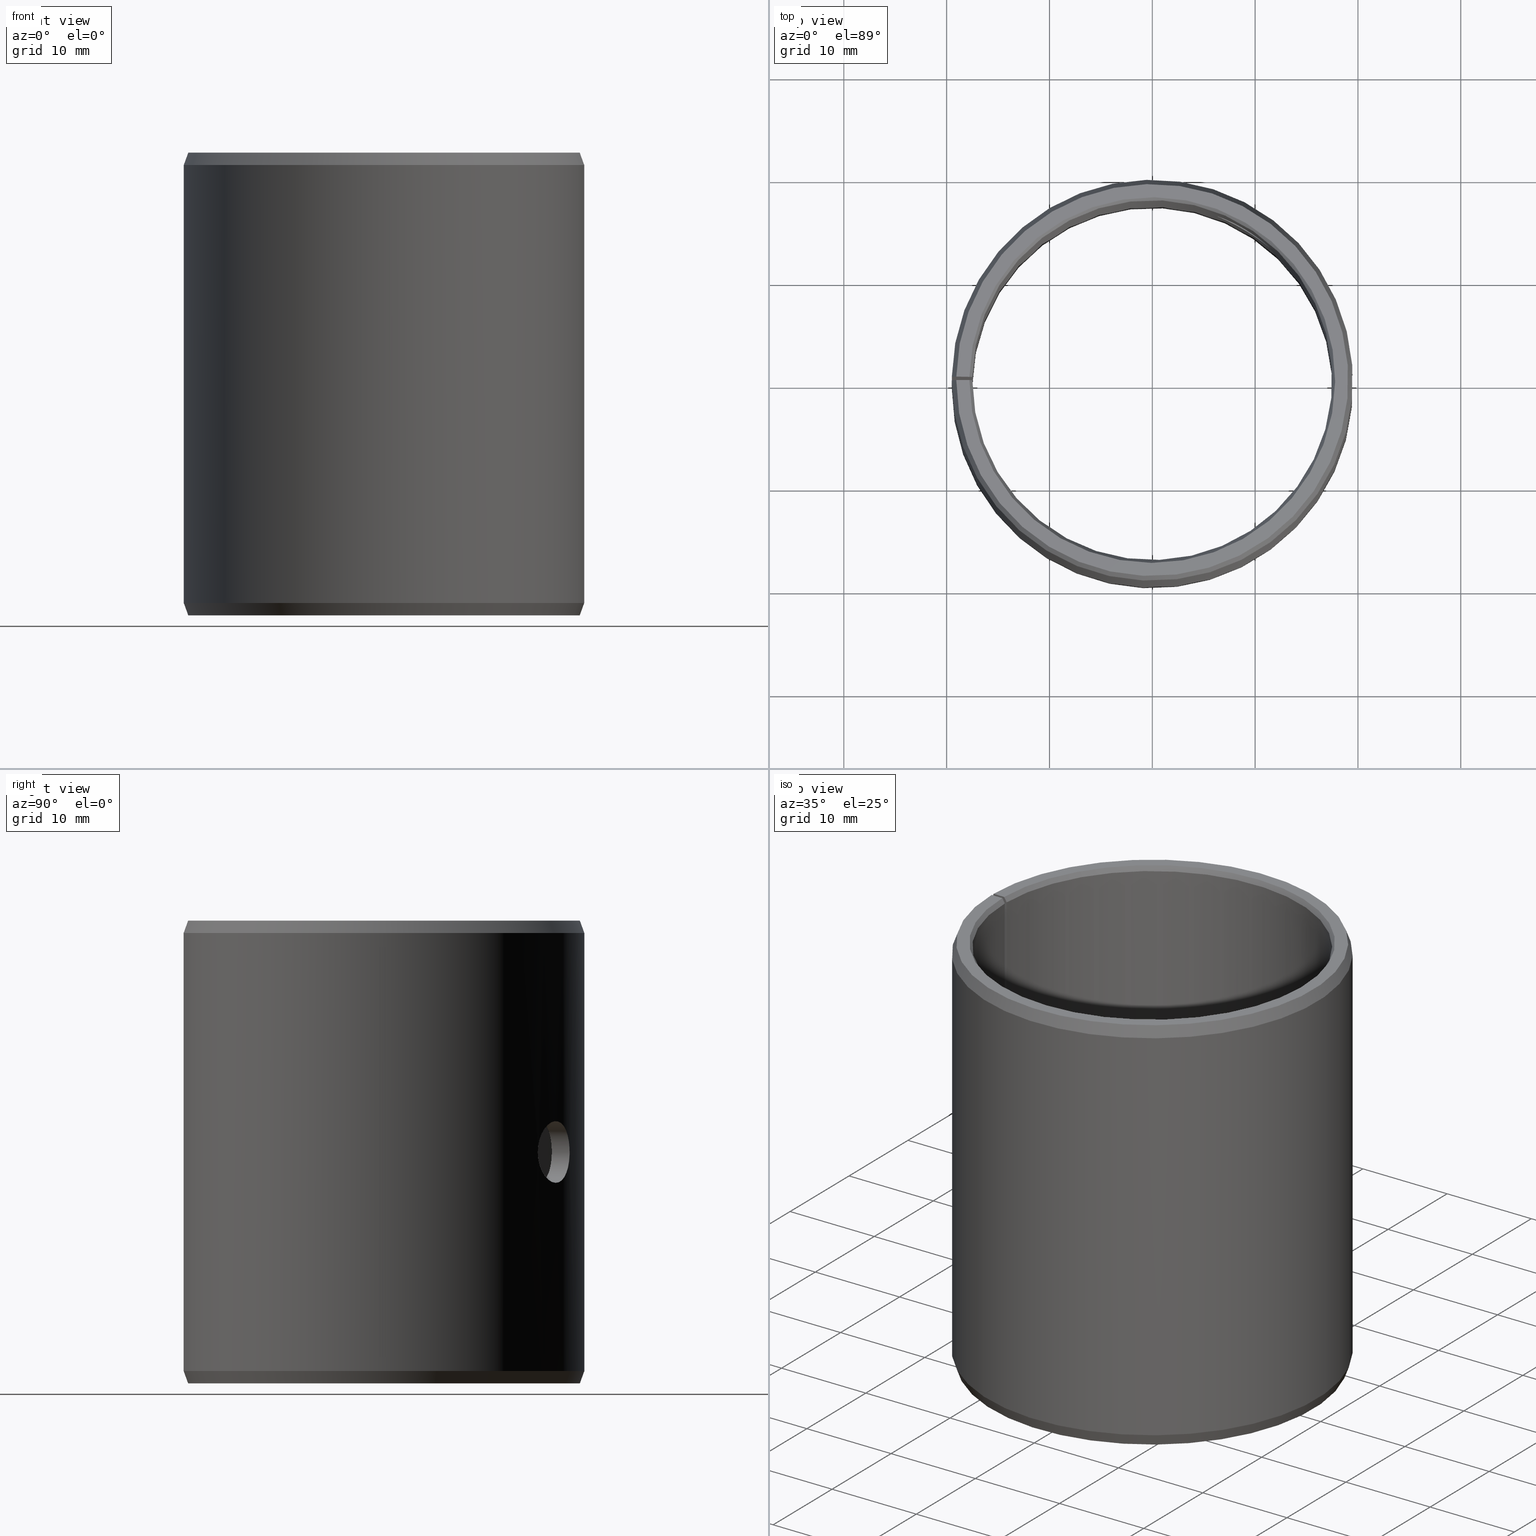
[diagram: canonical four-view strip — front | top / right | iso, engineering-drawing reading convention]
A machine part, canonical four-view strip (front | top / right | iso — engineering-drawing reading convention). The complete STEP part file that produces these views, byte-faithful:
ISO-10303-21;
HEADER;
FILE_DESCRIPTION(('STEP AP203'),'1');
FILE_NAME('440-POM3545LMB.stp','2016-09-21T05:13:50',(' '),(' '),'Spatial InterOp 3D',' ',' ');
FILE_SCHEMA(('CONFIG_CONTROL_DESIGN'));
ENDSEC;
DATA;
#1=DESIGN_CONTEXT('',#51,'design');
#2=APPLICATION_PROTOCOL_DEFINITION('INTERNATIONAL STANDARD','config_control_design',1994,#51);
#3=PRODUCT_CATEGORY_RELATIONSHIP('NONE','NONE',#52,#53);
#4=DATE_AND_TIME(#54,#55);
#5=DATE_TIME_ROLE('creation_date');
#6=DATE_TIME_ROLE('classification_date');
#7=PERSON_AND_ORGANIZATION_ROLE('creator');
#8=PERSON_AND_ORGANIZATION_ROLE('design_supplier');
#9=PERSON_AND_ORGANIZATION_ROLE('classification_officer');
#10=PERSON_AND_ORGANIZATION_ROLE('design_owner');
#11=APPROVAL_PERSON_ORGANIZATION(#56,#57,#58);
#12=APPROVAL_DATE_TIME(#4,#57);
#13=CC_DESIGN_APPROVAL(#57,(#59,#60,#61));
#14=CC_DESIGN_DATE_AND_TIME_ASSIGNMENT(#4,#5,(#61));
#15=CC_DESIGN_DATE_AND_TIME_ASSIGNMENT(#4,#6,(#59));
#16=CC_DESIGN_PERSON_AND_ORGANIZATION_ASSIGNMENT(#56,#10,(#62));
#17=CC_DESIGN_PERSON_AND_ORGANIZATION_ASSIGNMENT(#56,#7,(#61));
#18=CC_DESIGN_PERSON_AND_ORGANIZATION_ASSIGNMENT(#56,#7,(#60));
#19=CC_DESIGN_PERSON_AND_ORGANIZATION_ASSIGNMENT(#56,#8,(#60));
#20=CC_DESIGN_SECURITY_CLASSIFICATION(#59,(#60));
#21=CC_DESIGN_PERSON_AND_ORGANIZATION_ASSIGNMENT(#56,#9,(#59));
#22=SHAPE_DEFINITION_REPRESENTATION(#63,#64);
#23=DESIGN_CONTEXT('',#65,'design');
#24=APPLICATION_PROTOCOL_DEFINITION('INTERNATIONAL STANDARD','config_control_design',1994,#65);
#25=PRODUCT_CATEGORY_RELATIONSHIP('NONE','NONE',#66,#67);
#26=DATE_AND_TIME(#68,#69);
#27=DATE_TIME_ROLE('creation_date');
#28=DATE_TIME_ROLE('classification_date');
#29=PERSON_AND_ORGANIZATION_ROLE('creator');
#30=PERSON_AND_ORGANIZATION_ROLE('design_supplier');
#31=PERSON_AND_ORGANIZATION_ROLE('classification_officer');
#32=PERSON_AND_ORGANIZATION_ROLE('design_owner');
#33=APPROVAL_PERSON_ORGANIZATION(#70,#71,#72);
#34=APPROVAL_DATE_TIME(#26,#71);
#35=CC_DESIGN_APPROVAL(#71,(#73,#74,#75));
#36=CC_DESIGN_DATE_AND_TIME_ASSIGNMENT(#26,#27,(#75));
#37=CC_DESIGN_DATE_AND_TIME_ASSIGNMENT(#26,#28,(#73));
#38=CC_DESIGN_PERSON_AND_ORGANIZATION_ASSIGNMENT(#70,#32,(#76));
#39=CC_DESIGN_PERSON_AND_ORGANIZATION_ASSIGNMENT(#70,#29,(#75));
#40=CC_DESIGN_PERSON_AND_ORGANIZATION_ASSIGNMENT(#70,#29,(#74));
#41=CC_DESIGN_PERSON_AND_ORGANIZATION_ASSIGNMENT(#70,#30,(#74));
#42=CC_DESIGN_SECURITY_CLASSIFICATION(#73,(#74));
#43=CC_DESIGN_PERSON_AND_ORGANIZATION_ASSIGNMENT(#70,#31,(#73));
#44=CONTEXT_DEPENDENT_SHAPE_REPRESENTATION(#77,#78);
#45=SHAPE_DEFINITION_REPRESENTATION(#79,#80);
#46=SHAPE_REPRESENTATION_RELATIONSHIP('NONE','NONE',#80,#81);
#47= (GEOMETRIC_REPRESENTATION_CONTEXT(3)GLOBAL_UNCERTAINTY_ASSIGNED_CONTEXT((#84))GLOBAL_UNIT_ASSIGNED_CONTEXT((#86,#87,#88))REPRESENTATION_CONTEXT('NONE','WORKSPACE'));
#51=APPLICATION_CONTEXT('CONFIGURATION CONTROLLED 3D DESIGNS OF MECHANICAL PARTS AND ASSEMBLIES');
#52=PRODUCT_CATEGORY('part','NONE');
#53=PRODUCT_RELATED_PRODUCT_CATEGORY('detail',' ',(#62));
#54=CALENDAR_DATE(2016,21,8);
#55=LOCAL_TIME(7,13,50.0,#90);
#56=PERSON_AND_ORGANIZATION(#91,#92);
#57=APPROVAL(#93,'SOLID MODEL');
#58=APPROVAL_ROLE('APPROVED');
#59=SECURITY_CLASSIFICATION('','',#94);
#60=PRODUCT_DEFINITION_FORMATION_WITH_SPECIFIED_SOURCE(' ','NONE',#62,.NOT_KNOWN.);
#61=PRODUCT_DEFINITION('NONE','NONE',#60,#1);
#62=PRODUCT('','','PART--DESC',(#95));
#63=PRODUCT_DEFINITION_SHAPE('NONE','NONE',#61);
#64=SHAPE_REPRESENTATION('',(#96,#97),#98);
#65=APPLICATION_CONTEXT('CONFIGURATION CONTROLLED 3D DESIGNS OF MECHANICAL PARTS AND ASSEMBLIES');
#66=PRODUCT_CATEGORY('part','NONE');
#67=PRODUCT_RELATED_PRODUCT_CATEGORY('detail',' ',(#76));
#68=CALENDAR_DATE(2016,21,8);
#69=LOCAL_TIME(7,13,50.0,#99);
#70=PERSON_AND_ORGANIZATION(#100,#101);
#71=APPROVAL(#102,'SOLID MODEL');
#72=APPROVAL_ROLE('APPROVED');
#73=SECURITY_CLASSIFICATION('','',#103);
#74=PRODUCT_DEFINITION_FORMATION_WITH_SPECIFIED_SOURCE(' ','NONE',#76,.NOT_KNOWN.);
#75=PRODUCT_DEFINITION('440-POM3545LMB','440-POM3545LMB',#74,#23);
#76=PRODUCT('440-POM3545LMB','440-POM3545LMB','PART-440-POM3545LMB-DESC',(#104));
#77=(REPRESENTATION_RELATIONSHIP('','',#80,#64)REPRESENTATION_RELATIONSHIP_WITH_TRANSFORMATION(#107)SHAPE_REPRESENTATION_RELATIONSHIP());
#78=PRODUCT_DEFINITION_SHAPE('NAUO-PROD-DEF','NAUO-PROD-DEF',#109);
#79=PRODUCT_DEFINITION_SHAPE('NONE','NONE',#75);
#80=SHAPE_REPRESENTATION('440-POM3545LMB',(#96),#98);
#81=ADVANCED_BREP_SHAPE_REPRESENTATION('',(#110),#47);
#84=UNCERTAINTY_MEASURE_WITH_UNIT(LENGTH_MEASURE(1.0E-006),#86,'','');
#86= (CONVERSION_BASED_UNIT('METRE',#113)LENGTH_UNIT()NAMED_UNIT(#116));
#87= (NAMED_UNIT(#118)PLANE_ANGLE_UNIT()SI_UNIT($,.RADIAN.));
#88= (NAMED_UNIT(#118)SOLID_ANGLE_UNIT()SI_UNIT($,.STERADIAN.));
#90=COORDINATED_UNIVERSAL_TIME_OFFSET(1,0,.AHEAD.);
#91=PERSON('','UNSPECIFIED',$,$,$,$);
#92=ORGANIZATION('UNSPECIFIED','UNSPECIFIED','UNSPECIFIED');
#93=APPROVAL_STATUS('approved');
#94=SECURITY_CLASSIFICATION_LEVEL('unclassified');
#95=MECHANICAL_CONTEXT('',#51,'mechanical');
#96=AXIS2_PLACEMENT_3D('',#124,#125,#126);
#97=AXIS2_PLACEMENT_3D('',#127,#128,#129);
#98= (GEOMETRIC_REPRESENTATION_CONTEXT(3)GLOBAL_UNCERTAINTY_ASSIGNED_CONTEXT((#132))GLOBAL_UNIT_ASSIGNED_CONTEXT((#134,#135,#136))REPRESENTATION_CONTEXT('NONE','WORKSPACE'));
#99=COORDINATED_UNIVERSAL_TIME_OFFSET(1,0,.AHEAD.);
#100=PERSON('','UNSPECIFIED',$,$,$,$);
#101=ORGANIZATION('UNSPECIFIED','UNSPECIFIED','UNSPECIFIED');
#102=APPROVAL_STATUS('approved');
#103=SECURITY_CLASSIFICATION_LEVEL('unclassified');
#104=MECHANICAL_CONTEXT('',#65,'mechanical');
#107=ITEM_DEFINED_TRANSFORMATION('','',#96,#97);
#109=NEXT_ASSEMBLY_USAGE_OCCURRENCE('440-POM3545LMB','440-POM3545LMB','440-POM3545LMB',#61,#75,$);
#110=MANIFOLD_SOLID_BREP('',#138);
#113=LENGTH_MEASURE_WITH_UNIT(LENGTH_MEASURE(1.0),#139);
#116=DIMENSIONAL_EXPONENTS(1.0,0.0,0.0,0.0,0.0,0.0,0.0);
#118=DIMENSIONAL_EXPONENTS(0.0,0.0,0.0,0.0,0.0,0.0,0.0);
#124=CARTESIAN_POINT('',(0.0,0.0,0.0));
#125=DIRECTION('',(0.0,0.0,1.0));
#126=DIRECTION('',(1.0,0.0,0.0));
#127=CARTESIAN_POINT('',(0.0,0.0,0.0));
#128=DIRECTION('',(5.48707263966374E-016,-5.48707263966376E-016,1.0));
#129=DIRECTION('',(1.39349996950756E-015,1.0,5.48707263966375E-016));
#132=UNCERTAINTY_MEASURE_WITH_UNIT(LENGTH_MEASURE(1.0E-006),#134,'','');
#134= (CONVERSION_BASED_UNIT('METRE',#142)LENGTH_UNIT()NAMED_UNIT(#145));
#135= (NAMED_UNIT(#147)PLANE_ANGLE_UNIT()SI_UNIT($,.RADIAN.));
#136= (NAMED_UNIT(#147)SOLID_ANGLE_UNIT()SI_UNIT($,.STERADIAN.));
#138=CLOSED_SHELL('',(#153,#154,#155,#156,#157,#158,#159,#160,#161,#162,#163));
#139= (NAMED_UNIT(#116)LENGTH_UNIT()SI_UNIT($,.METRE.));
#142=LENGTH_MEASURE_WITH_UNIT(LENGTH_MEASURE(1.0),#165);
#145=DIMENSIONAL_EXPONENTS(1.0,0.0,0.0,0.0,0.0,0.0,0.0);
#147=DIMENSIONAL_EXPONENTS(0.0,0.0,0.0,0.0,0.0,0.0,0.0);
#153=ADVANCED_FACE('',(#166),#167,.F.);
#154=ADVANCED_FACE('',(#168),#169,.T.);
#155=ADVANCED_FACE('',(#170),#171,.T.);
#156=ADVANCED_FACE('',(#172),#173,.T.);
#157=ADVANCED_FACE('',(#174),#175,.T.);
#158=ADVANCED_FACE('',(#176),#177,.F.);
#159=ADVANCED_FACE('',(#178),#179,.T.);
#160=ADVANCED_FACE('',(#180),#181,.F.);
#161=ADVANCED_FACE('',(#182,#183),#184,.F.);
#162=ADVANCED_FACE('',(#185,#186),#187,.T.);
#163=ADVANCED_FACE('',(#188,#189),#190,.F.);
#165= (NAMED_UNIT(#145)LENGTH_UNIT()SI_UNIT($,.METRE.));
#166=FACE_OUTER_BOUND('',#192,.T.);
#167=CONICAL_SURFACE('',#193,0.0175,0.523598775598299);
#168=FACE_OUTER_BOUND('',#194,.T.);
#169=PLANE('',#195);
#170=FACE_OUTER_BOUND('',#196,.T.);
#171=CONICAL_SURFACE('',#197,0.0190632357188806,0.349065850398866);
#172=FACE_OUTER_BOUND('',#198,.T.);
#173=CONICAL_SURFACE('',#199,0.0195,0.349065850398871);
#174=FACE_OUTER_BOUND('',#200,.T.);
#175=PLANE('',#201);
#176=FACE_OUTER_BOUND('',#202,.T.);
#177=CONICAL_SURFACE('',#203,0.0177886751345948,0.523598775598288);
#178=FACE_OUTER_BOUND('',#204,.T.);
#179=PLANE('',#205);
#180=FACE_OUTER_BOUND('',#206,.T.);
#181=PLANE('',#207);
#182=FACE_OUTER_BOUND('',#208,.T.);
#183=FACE_BOUND('',#209,.T.);
#184=CYLINDRICAL_SURFACE('',#210,0.0175);
#185=FACE_OUTER_BOUND('',#211,.T.);
#186=FACE_BOUND('',#212,.T.);
#187=CYLINDRICAL_SURFACE('',#213,0.0195);
#188=FACE_OUTER_BOUND('',#214,.T.);
#189=FACE_OUTER_BOUND('',#215,.T.);
#190=CYLINDRICAL_SURFACE('',#216,0.003);
#192=EDGE_LOOP('',(#217,#218,#219,#220));
#193=AXIS2_PLACEMENT_3D('',#221,#222,#223);
#194=EDGE_LOOP('',(#224,#225,#226,#227));
#195=AXIS2_PLACEMENT_3D('',#228,#229,#230);
#196=EDGE_LOOP('',(#231,#232,#233,#234));
#197=AXIS2_PLACEMENT_3D('',#235,#236,#237);
#198=EDGE_LOOP('',(#238,#239,#240,#241));
#199=AXIS2_PLACEMENT_3D('',#242,#243,#244);
#200=EDGE_LOOP('',(#245,#246,#247,#248));
#201=AXIS2_PLACEMENT_3D('',#249,#250,#251);
#202=EDGE_LOOP('',(#252,#253,#254,#255));
#203=AXIS2_PLACEMENT_3D('',#256,#257,#258);
#204=EDGE_LOOP('',(#259,#260,#261,#262,#263,#264,#265,#266));
#205=AXIS2_PLACEMENT_3D('',#267,#268,#269);
#206=EDGE_LOOP('',(#270,#271,#272,#273,#274,#275,#276,#277));
#207=AXIS2_PLACEMENT_3D('',#278,#279,#280);
#208=EDGE_LOOP('',(#281,#282,#283,#284));
#209=EDGE_LOOP('',(#285));
#210=AXIS2_PLACEMENT_3D('',#286,#287,#288);
#211=EDGE_LOOP('',(#289,#290,#291,#292));
#212=EDGE_LOOP('',(#293));
#213=AXIS2_PLACEMENT_3D('',#294,#295,#296);
#214=EDGE_LOOP('',(#297));
#215=EDGE_LOOP('',(#298));
#216=AXIS2_PLACEMENT_3D('',#299,#300,#301);
#217=ORIENTED_EDGE('',*,*,#302,.T.);
#218=ORIENTED_EDGE('',*,*,#303,.F.);
#219=ORIENTED_EDGE('',*,*,#304,.F.);
#220=ORIENTED_EDGE('',*,*,#305,.T.);
#221=CARTESIAN_POINT('',(-6.93889390390723E-018,-6.93889390390723E-018,0.0005));
#222=DIRECTION('',(6.12323399573677E-017,-0.0,-1.0));
#223=DIRECTION('',(-1.0,0.0,-6.12323399573677E-017));
#224=ORIENTED_EDGE('',*,*,#306,.T.);
#225=ORIENTED_EDGE('',*,*,#307,.F.);
#226=ORIENTED_EDGE('',*,*,#302,.F.);
#227=ORIENTED_EDGE('',*,*,#308,.T.);
#228=CARTESIAN_POINT('',(0.000310455188429741,0.0177859658332104,2.90060440760835E-019));
#229=DIRECTION('',(6.12323399573677E-017,0.0,-1.0));
#230=DIRECTION('',(-1.0,0.0,-6.12323399573677E-017));
#231=ORIENTED_EDGE('',*,*,#309,.T.);
#232=ORIENTED_EDGE('',*,*,#310,.F.);
#233=ORIENTED_EDGE('',*,*,#306,.F.);
#234=ORIENTED_EDGE('',*,*,#311,.T.);
#235=CARTESIAN_POINT('',(-6.93889390390723E-018,-6.93889390390723E-018,6.50521303491303E-019));
#236=DIRECTION('',(-6.12323399573677E-017,0.0,1.0));
#237=DIRECTION('',(1.0,0.0,6.12323399573677E-017));
#238=ORIENTED_EDGE('',*,*,#312,.T.);
#239=ORIENTED_EDGE('',*,*,#313,.F.);
#240=ORIENTED_EDGE('',*,*,#314,.F.);
#241=ORIENTED_EDGE('',*,*,#315,.T.);
#242=CARTESIAN_POINT('',(-1.04083408558608E-017,-6.93889390390723E-018,0.0438));
#243=DIRECTION('',(6.12323399573677E-017,-0.0,-1.0));
#244=DIRECTION('',(-1.0,0.0,-6.12323399573677E-017));
#245=ORIENTED_EDGE('',*,*,#316,.T.);
#246=ORIENTED_EDGE('',*,*,#317,.T.);
#247=ORIENTED_EDGE('',*,*,#318,.F.);
#248=ORIENTED_EDGE('',*,*,#312,.F.);
#249=CARTESIAN_POINT('',(0.000332699337775635,0.0190603322957457,0.045));
#250=DIRECTION('',(-6.12323399573677E-017,0.0,1.0));
#251=DIRECTION('',(1.0,0.0,6.12323399573677E-017));
#252=ORIENTED_EDGE('',*,*,#319,.T.);
#253=ORIENTED_EDGE('',*,*,#320,.F.);
#254=ORIENTED_EDGE('',*,*,#317,.F.);
#255=ORIENTED_EDGE('',*,*,#321,.T.);
#256=CARTESIAN_POINT('',(-1.04083408558608E-017,-6.93889390390723E-018,0.045));
#257=DIRECTION('',(-6.12323399573677E-017,0.0,1.0));
#258=DIRECTION('',(1.0,0.0,6.12323399573677E-017));
#259=ORIENTED_EDGE('',*,*,#320,.T.);
#260=ORIENTED_EDGE('',*,*,#322,.T.);
#261=ORIENTED_EDGE('',*,*,#303,.T.);
#262=ORIENTED_EDGE('',*,*,#307,.T.);
#263=ORIENTED_EDGE('',*,*,#310,.T.);
#264=ORIENTED_EDGE('',*,*,#323,.T.);
#265=ORIENTED_EDGE('',*,*,#313,.T.);
#266=ORIENTED_EDGE('',*,*,#318,.T.);
#267=CARTESIAN_POINT('',(-6.93889390390723E-018,-0.014,0.0));
#268=DIRECTION('',(1.0,0.0,0.0));
#269=DIRECTION('',(0.0,0.0,-1.0));
#270=ORIENTED_EDGE('',*,*,#321,.F.);
#271=ORIENTED_EDGE('',*,*,#316,.F.);
#272=ORIENTED_EDGE('',*,*,#315,.F.);
#273=ORIENTED_EDGE('',*,*,#324,.F.);
#274=ORIENTED_EDGE('',*,*,#311,.F.);
#275=ORIENTED_EDGE('',*,*,#308,.F.);
#276=ORIENTED_EDGE('',*,*,#305,.F.);
#277=ORIENTED_EDGE('',*,*,#325,.F.);
#278=CARTESIAN_POINT('',(-0.000244333690121977,-0.0139978677321895,-1.49611235765866E-020));
#279=DIRECTION('',(0.999847695156391,-0.0174524064372836,-9.3259819610035E-021));
#280=DIRECTION('',(9.32598196100733E-021,1.0686516840419E-018,-1.0));
#281=ORIENTED_EDGE('',*,*,#304,.T.);
#282=ORIENTED_EDGE('',*,*,#322,.F.);
#283=ORIENTED_EDGE('',*,*,#319,.F.);
#284=ORIENTED_EDGE('',*,*,#325,.T.);
#285=ORIENTED_EDGE('',*,*,#326,.T.);
#286=CARTESIAN_POINT('',(-6.93889390390723E-018,-6.93889390390723E-018,0.0));
#287=DIRECTION('',(6.12323399573677E-017,0.0,-1.0));
#288=DIRECTION('',(-1.0,0.0,-6.12323399573677E-017));
#289=ORIENTED_EDGE('',*,*,#314,.T.);
#290=ORIENTED_EDGE('',*,*,#323,.F.);
#291=ORIENTED_EDGE('',*,*,#309,.F.);
#292=ORIENTED_EDGE('',*,*,#324,.T.);
#293=ORIENTED_EDGE('',*,*,#327,.T.);
#294=CARTESIAN_POINT('',(-6.93889390390723E-018,-6.93889390390723E-018,0.0));
#295=DIRECTION('',(6.12323399573677E-017,0.0,-1.0));
#296=DIRECTION('',(-1.0,0.0,-6.12323399573677E-017));
#297=ORIENTED_EDGE('',*,*,#326,.F.);
#298=ORIENTED_EDGE('',*,*,#327,.F.);
#299=CARTESIAN_POINT('',(0.0124289258602067,-0.00746805208615237,0.0225));
#300=DIRECTION('',(0.85716730070391,-0.515038074907062,0.0));
#301=DIRECTION('',(-0.515038074907062,-0.85716730070391,0.0));
#302=EDGE_CURVE('',#328,#329,#330,.T.);
#303=EDGE_CURVE('',#331,#329,#332,.T.);
#304=EDGE_CURVE('',#333,#331,#334,.T.);
#305=EDGE_CURVE('',#333,#328,#335,.T.);
#306=EDGE_CURVE('',#336,#337,#338,.T.);
#307=EDGE_CURVE('',#329,#337,#339,.T.);
#308=EDGE_CURVE('',#328,#336,#340,.T.);
#309=EDGE_CURVE('',#341,#342,#343,.T.);
#310=EDGE_CURVE('',#337,#342,#344,.T.);
#311=EDGE_CURVE('',#336,#341,#345,.T.);
#312=EDGE_CURVE('',#346,#347,#348,.T.);
#313=EDGE_CURVE('',#349,#347,#350,.T.);
#314=EDGE_CURVE('',#351,#349,#352,.T.);
#315=EDGE_CURVE('',#351,#346,#353,.T.);
#316=EDGE_CURVE('',#346,#354,#355,.T.);
#317=EDGE_CURVE('',#354,#356,#357,.T.);
#318=EDGE_CURVE('',#347,#356,#358,.T.);
#319=EDGE_CURVE('',#359,#360,#361,.T.);
#320=EDGE_CURVE('',#356,#360,#362,.T.);
#321=EDGE_CURVE('',#354,#359,#363,.T.);
#322=EDGE_CURVE('',#360,#331,#364,.T.);
#323=EDGE_CURVE('',#342,#349,#365,.T.);
#324=EDGE_CURVE('',#341,#351,#366,.T.);
#325=EDGE_CURVE('',#359,#333,#367,.T.);
#326=EDGE_CURVE('',#368,#368,#369,.T.);
#327=EDGE_CURVE('',#370,#370,#371,.T.);
#328=VERTEX_POINT('',#372);
#329=VERTEX_POINT('',#373);
#330=CIRCLE('',#374,0.0177886751345948);
#331=VERTEX_POINT('',#375);
#332=LINE('',#376,#377);
#333=VERTEX_POINT('',#378);
#334=CIRCLE('',#379,0.0175);
#335=LINE('',#380,#381);
#336=VERTEX_POINT('',#382);
#337=VERTEX_POINT('',#383);
#338=CIRCLE('',#384,0.0190632357188806);
#339=LINE('',#385,#386);
#340=LINE('',#387,#388);
#341=VERTEX_POINT('',#389);
#342=VERTEX_POINT('',#390);
#343=CIRCLE('',#391,0.0195);
#344=LINE('',#392,#393);
#345=LINE('',#394,#395);
#346=VERTEX_POINT('',#396);
#347=VERTEX_POINT('',#397);
#348=CIRCLE('',#398,0.0190632357188806);
#349=VERTEX_POINT('',#399);
#350=LINE('',#400,#401);
#351=VERTEX_POINT('',#402);
#352=CIRCLE('',#403,0.0195);
#353=LINE('',#404,#405);
#354=VERTEX_POINT('',#406);
#355=LINE('',#407,#408);
#356=VERTEX_POINT('',#409);
#357=CIRCLE('',#410,0.0177886751345948);
#358=LINE('',#411,#412);
#359=VERTEX_POINT('',#413);
#360=VERTEX_POINT('',#414);
#361=CIRCLE('',#415,0.0175);
#362=LINE('',#416,#417);
#363=LINE('',#418,#419);
#364=LINE('',#420,#421);
#365=LINE('',#422,#423);
#366=LINE('',#424,#425);
#367=LINE('',#426,#427);
#368=VERTEX_POINT('',#428);
#369=B_SPLINE_CURVE_WITH_KNOTS('',3,(#429,#430,#431,#432,#433,#434,#435,#436,#437,#438,#439,#440,#441,#442,#443,#444,#445,#446,#447,#448,#449,#450,#451,#452,#453,#454,#455,#456,#457,#458,#459,#460,#461,#462,#463,#464,#465,#466,#467,#468,#469,#470,#471,#472,#473,#474,#475,#476,#477,#478,#479,#480,#481,#482,#483,#484,#485,#486,#487,#488,#489,#490,#491,#492),.UNSPECIFIED.,.T.,.F.,(2,2,2,2,2,2,2,2,2,2,2,2,2,2,2,2,2,2,2,2,2,2,2,2,2,2,2,2,2,2,2,2,2,2),(-0.000587221033477321,0.0,0.000587221033477315,0.00117444206695463,0.00176166310043194,0.00234888413390926,0.00293610516738657,0.00352332620086389,0.0041105472343412,0.00469776826781852,0.00528498930129583,0.00587221033477315,0.00645943136825047,0.00704665240172778,0.0076338734352051,0.00822109446868242,0.00880831550215973,0.00939553653563705,0.00998275756911437,0.0105699786025917,0.011157199636069,0.0117444206695463,0.0123316417030236,0.012918862736501,0.0135060837699783,0.0140933048034556,0.0146805258369329,0.0152677468704102,0.0158549679038875,0.0164421889373649,0.0176166310043195,0.0182038520377968,0.0187910730712742,0.0193782941047515),.UNSPECIFIED.);
#370=VERTEX_POINT('',#493);
#371=B_SPLINE_CURVE_WITH_KNOTS('',3,(#494,#495,#496,#497,#498,#499,#500,#501,#502,#503,#504,#505,#506,#507,#508,#509,#510,#511,#512,#513,#514,#515,#516,#517,#518,#519,#520,#521,#522,#523,#524,#525,#526,#527,#528,#529,#530,#531,#532,#533,#534,#535,#536,#537,#538,#539,#540,#541,#542,#543,#544,#545,#546,#547,#548,#549,#550,#551,#552,#553,#554,#555,#556,#557,#558,#559),.UNSPECIFIED.,.T.,.F.,(2,2,2,2,2,2,2,2,2,2,2,2,2,2,2,2,2,2,2,2,2,2,2,2,2,2,2,2,2,2,2,2,2,2,2),(-0.000587009433090822,0.0,0.000587009433090825,0.00117401886618165,0.00176102829927247,0.0023480377323633,0.00293504716545412,0.00352205659854495,0.00410906603163577,0.0046960754647266,0.00528308489781742,0.00587009433090825,0.00645710376399907,0.0070441131970899,0.00763112263018072,0.00821813206327155,0.00880514149636237,0.00939215092945319,0.00997916036254402,0.0105661697956348,0.0111531792287257,0.0117401886618165,0.0123271980949073,0.0129142075279981,0.013501216961089,0.0140882263941798,0.0146752358272706,0.0152622452603614,0.0158492546934522,0.0164362641265431,0.0170232735596339,0.0176102829927247,0.0181972924258155,0.0187843018589064,0.0193713112919972),.UNSPECIFIED.);
#372=CARTESIAN_POINT('',(0.000310455188429741,0.0177859658332104,-8.94103196090914E-020));
#373=CARTESIAN_POINT('',(-6.93889390390723E-018,0.0177886751345948,-1.0842021724855E-019));
#374=AXIS2_PLACEMENT_3D('',#560,#561,#562);
#375=CARTESIAN_POINT('',(-6.93889390390723E-018,0.0175,0.0005));
#376=CARTESIAN_POINT('',(-6.93889390390723E-018,0.0175,0.0005));
#377=VECTOR('',#563,1.0);
#378=CARTESIAN_POINT('',(0.000305417112652456,0.0174973346652368,0.0005));
#379=AXIS2_PLACEMENT_3D('',#564,#565,#566);
#380=CARTESIAN_POINT('',(0.000305417112652456,0.0174973346652368,0.0005));
#381=VECTOR('',#567,1.0);
#382=CARTESIAN_POINT('',(0.000332699337775638,0.0190603322957457,6.70893262445572E-019));
#383=CARTESIAN_POINT('',(-6.93889390390723E-018,0.0190632357188806,6.50521303491303E-019));
#384=AXIS2_PLACEMENT_3D('',#568,#569,#570);
#385=CARTESIAN_POINT('',(-6.93889390390723E-018,0.0177886751345948,-1.56088653986495E-019));
#386=VECTOR('',#571,1.0);
#387=CARTESIAN_POINT('',(0.000310455188429741,0.0177859658332104,-1.37078756347036E-019));
#388=VECTOR('',#572,1.0);
#389=CARTESIAN_POINT('',(0.000340321925527022,0.0194970300555497,0.0012));
#390=CARTESIAN_POINT('',(-6.93889390390723E-018,0.0195,0.0012));
#391=AXIS2_PLACEMENT_3D('',#573,#574,#575);
#392=CARTESIAN_POINT('',(-6.93889390390723E-018,0.0190632357188806,6.50521303491303E-019));
#393=VECTOR('',#576,1.0);
#394=CARTESIAN_POINT('',(0.000332699337775638,0.0190603322957457,6.70893262445572E-019));
#395=VECTOR('',#577,1.0);
#396=CARTESIAN_POINT('',(0.000332699337775635,0.0190603322957457,0.045));
#397=CARTESIAN_POINT('',(-1.04083408558608E-017,0.0190632357188806,0.045));
#398=AXIS2_PLACEMENT_3D('',#578,#579,#580);
#399=CARTESIAN_POINT('',(-1.04083408558608E-017,0.0195,0.0438));
#400=CARTESIAN_POINT('',(-1.04083408558608E-017,0.0195,0.0438));
#401=VECTOR('',#581,1.0);
#402=CARTESIAN_POINT('',(0.000340321925527019,0.0194970300555497,0.0438));
#403=AXIS2_PLACEMENT_3D('',#582,#583,#584);
#404=CARTESIAN_POINT('',(0.000340321925527019,0.0194970300555497,0.0438));
#405=VECTOR('',#585,1.0);
#406=CARTESIAN_POINT('',(0.000310455188429739,0.0177859658332104,0.045));
#407=CARTESIAN_POINT('',(0.000332699337775635,0.0190603322957457,0.045));
#408=VECTOR('',#586,1.0);
#409=CARTESIAN_POINT('',(-1.04083408558608E-017,0.0177886751345948,0.045));
#410=AXIS2_PLACEMENT_3D('',#587,#588,#589);
#411=CARTESIAN_POINT('',(-1.04083408558608E-017,0.0190632357188806,0.045));
#412=VECTOR('',#590,1.0);
#413=CARTESIAN_POINT('',(0.000305417112652452,0.0174973346652368,0.0445));
#414=CARTESIAN_POINT('',(-1.04083408558608E-017,0.0175,0.0445));
#415=AXIS2_PLACEMENT_3D('',#591,#592,#593);
#416=CARTESIAN_POINT('',(-1.04083408558608E-017,0.0177886751345948,0.045));
#417=VECTOR('',#594,1.0);
#418=CARTESIAN_POINT('',(0.000310455188429739,0.0177859658332104,0.045));
#419=VECTOR('',#595,1.0);
#420=CARTESIAN_POINT('',(-1.04083408558608E-017,0.0175,0.0445));
#421=VECTOR('',#596,1.0);
#422=CARTESIAN_POINT('',(-6.93889390390723E-018,0.0195,0.0012));
#423=VECTOR('',#597,1.0);
#424=CARTESIAN_POINT('',(0.000340321925527022,0.0194970300555497,0.0012));
#425=VECTOR('',#598,1.0);
#426=CARTESIAN_POINT('',(0.000305417112652452,0.0174973346652368,0.0445));
#427=VECTOR('',#599,1.0);
#428=CARTESIAN_POINT('',(0.0132332554762969,-0.0114512422688134,0.0225));
#429=CARTESIAN_POINT('',(0.0132332554762969,-0.0114512422688134,0.0226985878317533));
#430=CARTESIAN_POINT('',(0.0132332554762969,-0.0114512422688134,0.0223014121682467));
#431=CARTESIAN_POINT('',(0.0132462502499575,-0.0114362737386044,0.0221062176435053));
#432=CARTESIAN_POINT('',(0.0132967856915806,-0.0113774774436589,0.0217223142861927));
#433=CARTESIAN_POINT('',(0.0133349512166993,-0.0113329122363727,0.0215315892892266));
#434=CARTESIAN_POINT('',(0.0134332823169054,-0.0112161825013413,0.0211684752862356));
#435=CARTESIAN_POINT('',(0.0134930062507869,-0.0111445446238804,0.0209963131621455));
#436=CARTESIAN_POINT('',(0.0136319949479402,-0.0109740970606592,0.0206704904128848));
#437=CARTESIAN_POINT('',(0.0137118177895944,-0.0108745303504638,0.0205165114209431));
#438=CARTESIAN_POINT('',(0.0138829860812394,-0.0106551421814216,0.0202403638861638));
#439=CARTESIAN_POINT('',(0.0139750082710844,-0.0105345267094124,0.0201163122925779));
#440=CARTESIAN_POINT('',(0.014170744849594,-0.0102697175996181,0.0198969842881805));
#441=CARTESIAN_POINT('',(0.0142726459601957,-0.010127895441503,0.0198040147591158));
#442=CARTESIAN_POINT('',(0.0144788487600751,-0.00983085079542873,0.0196542709472813));
#443=CARTESIAN_POINT('',(0.0145846663252628,-0.00967342091672745,0.0195964702585244));
#444=CARTESIAN_POINT('',(0.0147953310885796,-0.00934803412652868,0.0195192580935964));
#445=CARTESIAN_POINT('',(0.0148985468925628,-0.00918268677568743,0.0195001134949072));
#446=CARTESIAN_POINT('',(0.0151005273899564,-0.00884660999905928,0.0194998875016784));
#447=CARTESIAN_POINT('',(0.0152002169650322,-0.00867412868765641,0.0195194493594291));
#448=CARTESIAN_POINT('',(0.0153874655062465,-0.00833744622580273,0.0195961401973281));
#449=CARTESIAN_POINT('',(0.0154757713245558,-0.00817212996581181,0.0196528789371973));
#450=CARTESIAN_POINT('',(0.0156425884606747,-0.0078480973820429,0.0198034398994126));
#451=CARTESIAN_POINT('',(0.0157204304473556,-0.00769055623308388,0.019897210710964));
#452=CARTESIAN_POINT('',(0.0158610055222887,-0.00739628909969721,0.0201141520984759));
#453=CARTESIAN_POINT('',(0.0159248137641371,-0.00725741734420678,0.0202385004856519));
#454=CARTESIAN_POINT('',(0.0160394565945397,-0.00700040228003512,0.0205176979679346));
#455=CARTESIAN_POINT('',(0.01608884282041,-0.00688557766368859,0.02066878271299));
#456=CARTESIAN_POINT('',(0.0161739317565395,-0.00668326077580005,0.0209932731220683));
#457=CARTESIAN_POINT('',(0.0162099061215927,-0.00659505535272145,0.0211688246161539));
#458=CARTESIAN_POINT('',(0.0162667487333886,-0.0064535801863081,0.021531632484502));
#459=CARTESIAN_POINT('',(0.0162878286878656,-0.00639985670048641,0.0217186150305246));
#460=CARTESIAN_POINT('',(0.0163162673062908,-0.00632700168655616,0.0221037881701371));
#461=CARTESIAN_POINT('',(0.0163234555917626,-0.00630831178286999,0.0223028528799608));
#462=CARTESIAN_POINT('',(0.0163235120893371,-0.00630816558718994,0.0226947832427621));
#463=CARTESIAN_POINT('',(0.0163166118268718,-0.00632611288869702,0.0228898092725015));
#464=CARTESIAN_POINT('',(0.0162882086375017,-0.00639888937008356,0.0232779317401875));
#465=CARTESIAN_POINT('',(0.0162669209572252,-0.00645313989616637,0.0234668043320222));
#466=CARTESIAN_POINT('',(0.0162104771107113,-0.00659364571320098,0.0238279888187092));
#467=CARTESIAN_POINT('',(0.0161748164788111,-0.00668113022564001,0.0240029711009562));
#468=CARTESIAN_POINT('',(0.0160892318972891,-0.00688467908986579,0.0243301097377904));
#469=CARTESIAN_POINT('',(0.0160398563298427,-0.0069994554634311,0.0244809493180013));
#470=CARTESIAN_POINT('',(0.0159265085873207,-0.00725366749200372,0.0247577442691008));
#471=CARTESIAN_POINT('',(0.0158618337861023,-0.00739451757044189,0.0248843844691109));
#472=CARTESIAN_POINT('',(0.0157210962847255,-0.00768919974795156,0.0251019450060842));
#473=CARTESIAN_POINT('',(0.0156446517721771,-0.00784398279549365,0.0251942998988418));
#474=CARTESIAN_POINT('',(0.0154779482977019,-0.0081680053662048,0.0253455442018506));
#475=CARTESIAN_POINT('',(0.0153882644433432,-0.0083359552465319,0.0254033597770707));
#476=CARTESIAN_POINT('',(0.0152017490202574,-0.0086714277472367,0.025480093822618));
#477=CARTESIAN_POINT('',(0.0151037090301961,-0.00884122506740632,0.0254998427249298));
#478=CARTESIAN_POINT('',(0.0148995836961111,-0.00918105074835891,0.025500155408601));
#479=CARTESIAN_POINT('',(0.0147962420271354,-0.00934655884143399,0.0254808583042674));
#480=CARTESIAN_POINT('',(0.0145873953858909,-0.0096692727832886,0.0254047437067506));
#481=CARTESIAN_POINT('',(0.0144807169137241,-0.00982811726194725,0.025346922746799));
#482=CARTESIAN_POINT('',(0.0142734134702907,-0.0101268316445039,0.0251967034984746));
#483=CARTESIAN_POINT('',(0.0141725489638869,-0.0102672168446168,0.0251047131447361));
#484=CARTESIAN_POINT('',(0.0139776769097401,-0.0105309749821691,0.0248869947544013));
#485=CARTESIAN_POINT('',(0.0138838162794268,-0.0106540605298257,0.0247608149873488));
#486=CARTESIAN_POINT('',(0.0136270706203179,-0.0109831865742659,0.0243470837705835));
#487=CARTESIAN_POINT('',(0.0134826876658335,-0.0111575192700993,0.024013107326676));
#488=CARTESIAN_POINT('',(0.0133358098252313,-0.0113318997544334,0.0234720070217644));
#489=CARTESIAN_POINT('',(0.0132975048512904,-0.0113766388027506,0.0232822094163142));
#490=CARTESIAN_POINT('',(0.0132462532029104,-0.0114362721986988,0.0228947311625998));
#491=CARTESIAN_POINT('',(0.0132332554762969,-0.0114512422688134,0.0226985878317533));
#492=CARTESIAN_POINT('',(0.0132332554762969,-0.0114512422688134,0.0223014121682467));
#493=CARTESIAN_POINT('',(0.0149706557798313,-0.0124951776906855,0.0225));
#494=CARTESIAN_POINT('',(0.0149706557798313,-0.0124951776906855,0.0223014895659618));
#495=CARTESIAN_POINT('',(0.0149706557798313,-0.0124951776906855,0.0226985104340382));
#496=CARTESIAN_POINT('',(0.0149833314837837,-0.0124800348621713,0.0228936437700711));
#497=CARTESIAN_POINT('',(0.0150326641338093,-0.0124205676824387,0.0232774510972444));
#498=CARTESIAN_POINT('',(0.015069928540972,-0.0123755018770107,0.02346813604296));
#499=CARTESIAN_POINT('',(0.015166074696659,-0.0122574863342064,0.0238312887161006));
#500=CARTESIAN_POINT('',(0.0152245146701845,-0.0121850809388324,0.0240034806495446));
#501=CARTESIAN_POINT('',(0.015360702543225,-0.0120129455924481,0.0243293599681815));
#502=CARTESIAN_POINT('',(0.0154390290355291,-0.0119124178858036,0.0244834240533812));
#503=CARTESIAN_POINT('',(0.0156072645188539,-0.0116911338921615,0.0247596877692386));
#504=CARTESIAN_POINT('',(0.0156978269100683,-0.011569584921165,0.0248837646567694));
#505=CARTESIAN_POINT('',(0.0158907951376737,-0.0113030834217483,0.0251030880563401));
#506=CARTESIAN_POINT('',(0.0159914974718561,-0.0111604065941269,0.0251961039180374));
#507=CARTESIAN_POINT('',(0.016195616982516,-0.0108620742629689,0.0253458216467392));
#508=CARTESIAN_POINT('',(0.0163005398649087,-0.0107042024200055,0.0254035789307381));
#509=CARTESIAN_POINT('',(0.0165100406699082,-0.0103781552510023,0.02548076098473));
#510=CARTESIAN_POINT('',(0.0166129382585461,-0.0102126728562142,0.0254998882738148));
#511=CARTESIAN_POINT('',(0.01681483217084,-0.00987673141868303,0.0255001107595029));
#512=CARTESIAN_POINT('',(0.0169147753900004,-0.00970450713726847,0.0254805675821432));
#513=CARTESIAN_POINT('',(0.0171031344905516,-0.00936855783296243,0.025403911397553));
#514=CARTESIAN_POINT('',(0.0171922568560058,-0.00920377453121156,0.0253471972604755));
#515=CARTESIAN_POINT('',(0.0173611442878784,-0.00888109398890274,0.0251967181194372));
#516=CARTESIAN_POINT('',(0.0174403175020868,-0.00872421240254107,0.0251029136505754));
#517=CARTESIAN_POINT('',(0.0175836883760394,-0.00843151586089861,0.0248859401861775));
#518=CARTESIAN_POINT('',(0.0176489449722354,-0.0082936433831248,0.024761712522632));
#519=CARTESIAN_POINT('',(0.0177667341550724,-0.00803821725648331,0.0244822821200508));
#520=CARTESIAN_POINT('',(0.0178176424063448,-0.00792424227145673,0.0243311056782011));
#521=CARTESIAN_POINT('',(0.0179055338940902,-0.00772359064585286,0.0240065508513514));
#522=CARTESIAN_POINT('',(0.0179428032438487,-0.00763620301640861,0.0238310434821884));
#523=CARTESIAN_POINT('',(0.018001824736235,-0.00749600499740697,0.0234680944792541));
#524=CARTESIAN_POINT('',(0.0180237570118666,-0.00744282885363643,0.0232811109014696));
#525=CARTESIAN_POINT('',(0.0180533565520529,-0.00737074184677381,0.022896112521996));
#526=CARTESIAN_POINT('',(0.0180608552504371,-0.0073522450740322,0.0226970847531542));
#527=CARTESIAN_POINT('',(0.0180609130371271,-0.00735210311891799,0.022305234114312));
#528=CARTESIAN_POINT('',(0.018053714599517,-0.00736986449831897,0.0221103003725879));
#529=CARTESIAN_POINT('',(0.0180241636808527,-0.00744184366741361,0.0217224674647947));
#530=CARTESIAN_POINT('',(0.0180019946278781,-0.00749559133569008,0.0215334163612371));
#531=CARTESIAN_POINT('',(0.0179434140107477,-0.00763476218966424,0.0211722524523485));
#532=CARTESIAN_POINT('',(0.0179064998831356,-0.0077213611819968,0.0209974080678264));
#533=CARTESIAN_POINT('',(0.0178180415900439,-0.00792335474802498,0.0206699825400046));
#534=CARTESIAN_POINT('',(0.0177671431365666,-0.00803728413291257,0.0205190798731835));
#535=CARTESIAN_POINT('',(0.0176507898398454,-0.00828968814238652,0.0202422797843854));
#536=CARTESIAN_POINT('',(0.0175845757069147,-0.00842967054428598,0.0201155890456822));
#537=CARTESIAN_POINT('',(0.0174409841885843,-0.00872288477574771,0.0198979109294579));
#538=CARTESIAN_POINT('',(0.0173632697235621,-0.00887693617793337,0.0198055793777291));
#539=CARTESIAN_POINT('',(0.0171945373644908,-0.00919951173820663,0.0196544413507142));
#540=CARTESIAN_POINT('',(0.0171039289675329,-0.00936709294986622,0.0195965813647711));
#541=CARTESIAN_POINT('',(0.0169162943783774,-0.00970184523489855,0.0195198832385157));
#542=CARTESIAN_POINT('',(0.016818153681989,-0.00987112055732314,0.0195001668977406));
#543=CARTESIAN_POINT('',(0.0166139555630856,-0.0102110623774427,0.0194998352011615));
#544=CARTESIAN_POINT('',(0.0165109143728976,-0.0103767338284968,0.0195191360554897));
#545=CARTESIAN_POINT('',(0.0163032930854969,-0.0106999781749786,0.019595191627637));
#546=CARTESIAN_POINT('',(0.016197546027642,-0.0108592155021141,0.0196529320013771));
#547=CARTESIAN_POINT('',(0.0159922422067443,-0.0111593569635424,0.0198031834490454));
#548=CARTESIAN_POINT('',(0.01589262047771,-0.0113005059750439,0.0198951769328295));
#549=CARTESIAN_POINT('',(0.0157005771620229,-0.0115658418508942,0.0201127778379214));
#550=CARTESIAN_POINT('',(0.015608118199153,-0.0116899945902435,0.0202390767847351));
#551=CARTESIAN_POINT('',(0.0154398558385624,-0.0119113466460792,0.0205150534828849));
#552=CARTESIAN_POINT('',(0.0153629258767852,-0.0120101121813316,0.02066582571613));
#553=CARTESIAN_POINT('',(0.0152254008070771,-0.0121839836001047,0.0209939044414007));
#554=CARTESIAN_POINT('',(0.0151665116740981,-0.0122569436600335,0.0211674967259357));
#555=CARTESIAN_POINT('',(0.0150707765766145,-0.0123744671652382,0.0215282307236351));
#556=CARTESIAN_POINT('',(0.0150334126213185,-0.0124196635642654,0.0217177284131086));
#557=CARTESIAN_POINT('',(0.0149833341967204,-0.012480033431115,0.0221053473568906));
#558=CARTESIAN_POINT('',(0.0149706557798313,-0.0124951776906855,0.0223014895659618));
#559=CARTESIAN_POINT('',(0.0149706557798313,-0.0124951776906855,0.0226985104340382));
#560=CARTESIAN_POINT('',(-6.93889390390723E-018,-6.93889390390723E-018,-1.0842021724855E-019));
#561=DIRECTION('',(6.12323399573677E-017,0.0,-1.0));
#562=DIRECTION('',(-1.0,0.0,-6.12323399573677E-017));
#563=DIRECTION('',(0.0,0.500000000000001,-0.866025403784438));
#564=CARTESIAN_POINT('',(-6.93889390390723E-018,-6.93889390390723E-018,0.0005));
#565=DIRECTION('',(6.12323399573677E-017,0.0,-1.0));
#566=DIRECTION('',(-1.0,0.0,-6.12323399573677E-017));
#567=DIRECTION('',(0.00872620321864186,0.4999238475782,-0.866025403784436));
#568=CARTESIAN_POINT('',(-6.93889390390723E-018,-6.93889390390723E-018,6.50521303491303E-019));
#569=DIRECTION('',(6.12323399573677E-017,0.0,-1.0));
#570=DIRECTION('',(-1.0,0.0,-6.12323399573677E-017));
#571=DIRECTION('',(0.0,1.0,6.32853367209544E-016));
#572=DIRECTION('',(0.0174524064372836,0.999847695156391,6.33922018893586E-016));
#573=CARTESIAN_POINT('',(-6.93889390390723E-018,-6.93889390390723E-018,0.0012));
#574=DIRECTION('',(6.12323399573677E-017,0.0,-1.0));
#575=DIRECTION('',(-1.0,0.0,-6.12323399573677E-017));
#576=DIRECTION('',(0.0,0.342020143325667,0.939692620785909));
#577=DIRECTION('',(0.00596907455105751,0.341968052001227,0.939692620785909));
#578=CARTESIAN_POINT('',(-1.04083408558608E-017,-6.93889390390723E-018,0.045));
#579=DIRECTION('',(6.12323399573677E-017,0.0,-1.0));
#580=DIRECTION('',(-1.0,0.0,-6.12323399573677E-017));
#581=DIRECTION('',(0.0,-0.342020143325671,0.939692620785908));
#582=CARTESIAN_POINT('',(-1.04083408558608E-017,-6.93889390390723E-018,0.0438));
#583=DIRECTION('',(6.12323399573677E-017,0.0,-1.0));
#584=DIRECTION('',(-1.0,0.0,-6.12323399573677E-017));
#585=DIRECTION('',(-0.00596907455105759,-0.341968052001231,0.939692620785908));
#586=DIRECTION('',(-0.0174524064372836,-0.999847695156391,-1.0686516840419E-018));
#587=CARTESIAN_POINT('',(-1.04083408558608E-017,-6.93889390390723E-018,0.045));
#588=DIRECTION('',(6.12323399573677E-017,0.0,-1.0));
#589=DIRECTION('',(-1.0,0.0,-6.12323399573677E-017));
#590=DIRECTION('',(0.0,-1.0,0.0));
#591=CARTESIAN_POINT('',(-1.04083408558608E-017,-6.93889390390723E-018,0.0445));
#592=DIRECTION('',(6.12323399573677E-017,0.0,-1.0));
#593=DIRECTION('',(-1.0,0.0,-6.12323399573677E-017));
#594=DIRECTION('',(0.0,-0.499999999999999,-0.866025403784439));
#595=DIRECTION('',(-0.0087262032186417,-0.499923847578191,-0.866025403784441));
#596=DIRECTION('',(7.88510670898549E-017,1.5770213417971E-016,-1.0));
#597=DIRECTION('',(-8.14424167125262E-017,0.0,1.0));
#598=DIRECTION('',(-8.14393386199467E-017,3.52714473659723E-019,1.0));
#599=DIRECTION('',(8.16006654141057E-017,1.57370626194003E-016,-1.0));
ENDSEC;
END-ISO-10303-21;
